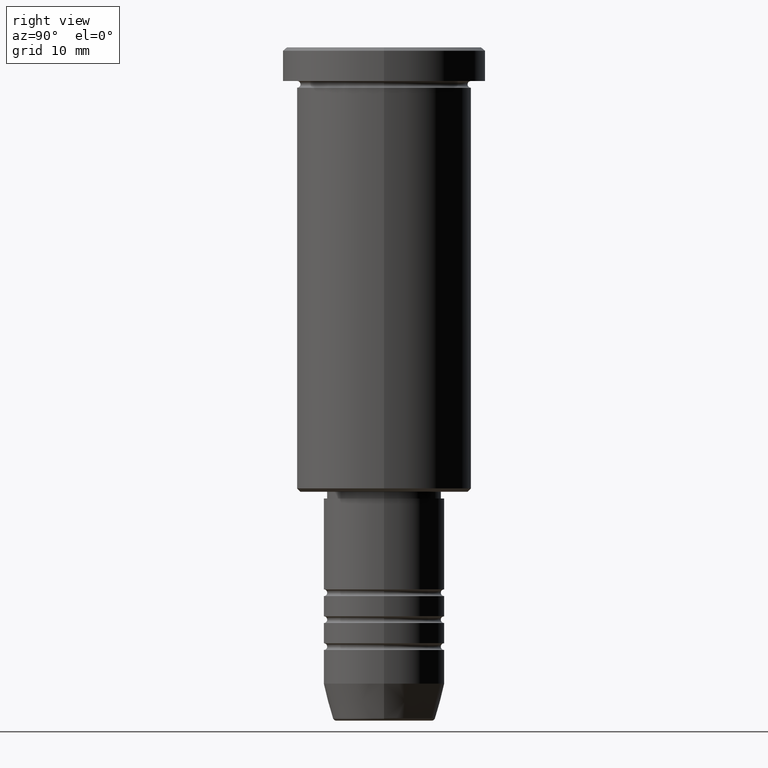
[diagram: clean part render]
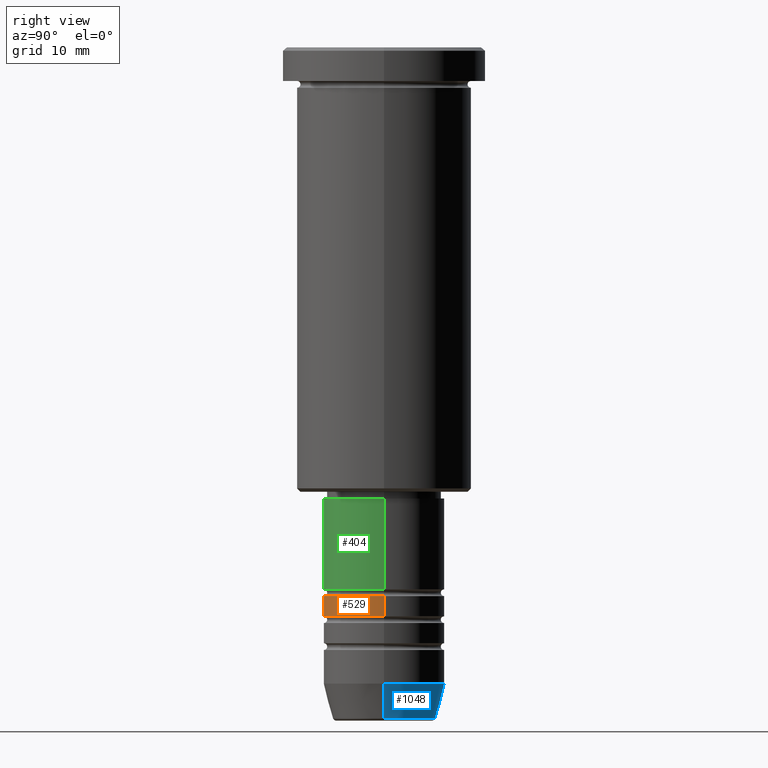
[diagram: same view with three faces highlighted in distinct colors, each labeled with its STEP entity id]
A machine part, right view with three faces highlighted in distinct colors.
Their STEP definitions:

[orange] entity #529 — the highlighted cylindrical surface (partial cylindrical patch) has radius 9 mm, axis along (-0, -0, 1).
#84 = DIRECTION ( 'NONE',  ( -0.000000000000000000, -0.000000000000000000, 1.000000000000000000 ) ) ;
#219 = LINE ( 'NONE', #389, #663 ) ;
#251 = CARTESIAN_POINT ( 'NONE',  ( 0.000000000000000000, 0.000000000000000000, -84.49999999999998579 ) ) ;
#277 = CIRCLE ( 'NONE', #316, 9.000000000000001776 ) ;
#316 = AXIS2_PLACEMENT_3D ( 'NONE', #251, #84, #719 ) ;
#347 = ORIENTED_EDGE ( 'NONE', *, *, #490, .T. ) ;
#389 = CARTESIAN_POINT ( 'NONE',  ( 9.000000000000001776, 0.000000000000000000, 0.000000000000000000 ) ) ;
#436 = EDGE_CURVE ( 'NONE', #1020, #1036, #714, .T. ) ;
#474 = CARTESIAN_POINT ( 'NONE',  ( 9.000000000000000000, 0.000000000000000000, -81.49999999999998579 ) ) ;
#490 = EDGE_CURVE ( 'NONE', #825, #723, #277, .T. ) ;
#518 = ORIENTED_EDGE ( 'NONE', *, *, #436, .F. ) ;
#519 = EDGE_CURVE ( 'NONE', #825, #1020, #608, .T. ) ;
#529 = ADVANCED_FACE ( 'NONE', ( #896 ), #540, .T. ) ;
#540 = CYLINDRICAL_SURFACE ( 'NONE', #931, 9.000000000000001776 ) ;
#556 = DIRECTION ( 'NONE',  ( -0.000000000000000000, -0.000000000000000000, 1.000000000000000000 ) ) ;
#560 = EDGE_LOOP ( 'NONE', ( #634, #347, #1178, #518 ) ) ;
#608 = LINE ( 'NONE', #1089, #788 ) ;
#634 = ORIENTED_EDGE ( 'NONE', *, *, #519, .F. ) ;
#659 = CARTESIAN_POINT ( 'NONE',  ( -9.000000000000001776, 1.102182119232617911E-15, -84.49999999999998579 ) ) ;
#663 = VECTOR ( 'NONE', #556, 1000.000000000000000 ) ;
#671 = DIRECTION ( 'NONE',  ( 1.000000000000000000, 0.000000000000000000, 0.000000000000000000 ) ) ;
#714 = CIRCLE ( 'NONE', #770, 9.000000000000000000 ) ;
#719 = DIRECTION ( 'NONE',  ( 1.000000000000000000, 0.000000000000000000, 0.000000000000000000 ) ) ;
#723 = VERTEX_POINT ( 'NONE', #748 ) ;
#725 = DIRECTION ( 'NONE',  ( -0.000000000000000000, -0.000000000000000000, 1.000000000000000000 ) ) ;
#748 = CARTESIAN_POINT ( 'NONE',  ( 9.000000000000001776, 0.000000000000000000, -84.49999999999998579 ) ) ;
#770 = AXIS2_PLACEMENT_3D ( 'NONE', #953, #856, #671 ) ;
#788 = VECTOR ( 'NONE', #1175, 1000.000000000000000 ) ;
#814 = CARTESIAN_POINT ( 'NONE',  ( 0.000000000000000000, 0.000000000000000000, 0.000000000000000000 ) ) ;
#825 = VERTEX_POINT ( 'NONE', #659 ) ;
#856 = DIRECTION ( 'NONE',  ( -0.000000000000000000, -0.000000000000000000, 1.000000000000000000 ) ) ;
#865 = EDGE_CURVE ( 'NONE', #723, #1036, #219, .T. ) ;
#896 = FACE_OUTER_BOUND ( 'NONE', #560, .T. ) ;
#907 = CARTESIAN_POINT ( 'NONE',  ( -9.000000000000000000, 1.102182119232617714E-15, -81.49999999999998579 ) ) ;
#931 = AXIS2_PLACEMENT_3D ( 'NONE', #814, #725, #1113 ) ;
#953 = CARTESIAN_POINT ( 'NONE',  ( 0.000000000000000000, 0.000000000000000000, -81.49999999999998579 ) ) ;
#1020 = VERTEX_POINT ( 'NONE', #907 ) ;
#1036 = VERTEX_POINT ( 'NONE', #474 ) ;
#1089 = CARTESIAN_POINT ( 'NONE',  ( -9.000000000000001776, 1.102182119232617911E-15, 0.000000000000000000 ) ) ;
#1113 = DIRECTION ( 'NONE',  ( 1.000000000000000000, 0.000000000000000000, 0.000000000000000000 ) ) ;
#1175 = DIRECTION ( 'NONE',  ( -0.000000000000000000, -0.000000000000000000, 1.000000000000000000 ) ) ;
#1178 = ORIENTED_EDGE ( 'NONE', *, *, #865, .T. ) ;

[blue] entity #1048 — the highlighted conical surface has half-angle 15 deg.
#6 = VECTOR ( 'NONE', #1088, 1000.000000000000000 ) ;
#49 = CARTESIAN_POINT ( 'NONE',  ( 9.000000000000001776, 0.000000000000000000, -94.50000000000000000 ) ) ;
#61 = DIRECTION ( 'NONE',  ( 1.000000000000000000, 0.000000000000000000, 0.000000000000000000 ) ) ;
#73 = CARTESIAN_POINT ( 'NONE',  ( 9.000000000000001776, 0.000000000000000000, -94.50000000000000000 ) ) ;
#95 = EDGE_LOOP ( 'NONE', ( #1133, #585, #482, #687 ) ) ;
#135 = CARTESIAN_POINT ( 'NONE',  ( 0.000000000000000000, 0.000000000000000000, -99.62940952255125637 ) ) ;
#208 = CARTESIAN_POINT ( 'NONE',  ( 0.000000000000000000, 0.000000000000000000, -94.50000000000000000 ) ) ;
#235 = CARTESIAN_POINT ( 'NONE',  ( 0.000000000000000000, 0.000000000000000000, -94.50000000000000000 ) ) ;
#304 = DIRECTION ( 'NONE',  ( 1.000000000000000000, 0.000000000000000000, 0.000000000000000000 ) ) ;
#325 = DIRECTION ( 'NONE',  ( -0.000000000000000000, -0.000000000000000000, 1.000000000000000000 ) ) ;
#371 = VERTEX_POINT ( 'NONE', #574 ) ;
#377 = EDGE_CURVE ( 'NONE', #920, #1090, #874, .T. ) ;
#380 = CARTESIAN_POINT ( 'NONE',  ( -9.000000000000001776, 1.102182119232617911E-15, -94.50000000000000000 ) ) ;
#391 = DIRECTION ( 'NONE',  ( -0.2588190451025214056, 3.169619151431772953E-17, 0.9659258262890680902 ) ) ;
#393 = EDGE_CURVE ( 'NONE', #1090, #762, #661, .T. ) ;
#472 = EDGE_CURVE ( 'NONE', #371, #762, #653, .T. ) ;
#482 = ORIENTED_EDGE ( 'NONE', *, *, #393, .F. ) ;
#525 = AXIS2_PLACEMENT_3D ( 'NONE', #208, #903, #304 ) ;
#538 = CARTESIAN_POINT ( 'NONE',  ( 7.625578860783879698, 0.000000000000000000, -99.62940952255125637 ) ) ;
#570 = DIRECTION ( 'NONE',  ( -0.000000000000000000, -0.000000000000000000, 1.000000000000000000 ) ) ;
#574 = CARTESIAN_POINT ( 'NONE',  ( -7.625578860783880586, 1.018023096791544096E-15, -99.62940952255125637 ) ) ;
#585 = ORIENTED_EDGE ( 'NONE', *, *, #472, .T. ) ;
#653 = LINE ( 'NONE', #380, #887 ) ;
#661 = CIRCLE ( 'NONE', #525, 9.000000000000001776 ) ;
#678 = AXIS2_PLACEMENT_3D ( 'NONE', #235, #325, #61 ) ;
#685 = EDGE_CURVE ( 'NONE', #920, #371, #737, .T. ) ;
#687 = ORIENTED_EDGE ( 'NONE', *, *, #377, .F. ) ;
#737 = CIRCLE ( 'NONE', #1124, 7.625578860783879698 ) ;
#762 = VERTEX_POINT ( 'NONE', #984 ) ;
#779 = DIRECTION ( 'NONE',  ( 1.000000000000000000, 0.000000000000000000, 0.000000000000000000 ) ) ;
#872 = CONICAL_SURFACE ( 'NONE', #678, 9.000000000000001776, 0.2617993877991501295 ) ;
#874 = LINE ( 'NONE', #73, #6 ) ;
#887 = VECTOR ( 'NONE', #391, 1000.000000000000000 ) ;
#903 = DIRECTION ( 'NONE',  ( -0.000000000000000000, -0.000000000000000000, 1.000000000000000000 ) ) ;
#920 = VERTEX_POINT ( 'NONE', #538 ) ;
#984 = CARTESIAN_POINT ( 'NONE',  ( -9.000000000000001776, 1.102182119232617911E-15, -94.50000000000000000 ) ) ;
#1048 = ADVANCED_FACE ( 'NONE', ( #1060 ), #872, .T. ) ;
#1060 = FACE_OUTER_BOUND ( 'NONE', #95, .T. ) ;
#1088 = DIRECTION ( 'NONE',  ( 0.2588190451025214056, 0.000000000000000000, 0.9659258262890680902 ) ) ;
#1090 = VERTEX_POINT ( 'NONE', #49 ) ;
#1124 = AXIS2_PLACEMENT_3D ( 'NONE', #135, #570, #779 ) ;
#1133 = ORIENTED_EDGE ( 'NONE', *, *, #685, .T. ) ;

[green] entity #404 — the highlighted cylindrical surface (partial cylindrical patch) has radius 9 mm, axis along (-0, -0, 1).
#67 = CARTESIAN_POINT ( 'NONE',  ( 0.000000000000000000, 0.000000000000000000, -67.00000000000000000 ) ) ;
#94 = CYLINDRICAL_SURFACE ( 'NONE', #849, 9.000000000000000000 ) ;
#108 = DIRECTION ( 'NONE',  ( -0.000000000000000000, -0.000000000000000000, 1.000000000000000000 ) ) ;
#125 = DIRECTION ( 'NONE',  ( -0.000000000000000000, -0.000000000000000000, 1.000000000000000000 ) ) ;
#130 = AXIS2_PLACEMENT_3D ( 'NONE', #266, #981, #441 ) ;
#170 = DIRECTION ( 'NONE',  ( -0.000000000000000000, -0.000000000000000000, 1.000000000000000000 ) ) ;
#212 = CIRCLE ( 'NONE', #1041, 8.999999999999998224 ) ;
#266 = CARTESIAN_POINT ( 'NONE',  ( 0.000000000000000000, 0.000000000000000000, -80.49999999999998579 ) ) ;
#270 = ORIENTED_EDGE ( 'NONE', *, *, #373, .F. ) ;
#318 = ORIENTED_EDGE ( 'NONE', *, *, #1179, .T. ) ;
#319 = VECTOR ( 'NONE', #664, 1000.000000000000000 ) ;
#342 = CARTESIAN_POINT ( 'NONE',  ( -8.999999999999998224, 1.102182119232617714E-15, -67.00000000000000000 ) ) ;
#344 = EDGE_LOOP ( 'NONE', ( #790, #1164, #318, #270 ) ) ;
#373 = EDGE_CURVE ( 'NONE', #701, #452, #212, .T. ) ;
#401 = LINE ( 'NONE', #1055, #319 ) ;
#404 = ADVANCED_FACE ( 'NONE', ( #1025 ), #94, .T. ) ;
#441 = DIRECTION ( 'NONE',  ( 1.000000000000000000, 0.000000000000000000, 0.000000000000000000 ) ) ;
#452 = VERTEX_POINT ( 'NONE', #941 ) ;
#515 = DIRECTION ( 'NONE',  ( 1.000000000000000000, 0.000000000000000000, 0.000000000000000000 ) ) ;
#547 = CARTESIAN_POINT ( 'NONE',  ( 0.000000000000000000, 0.000000000000000000, 0.000000000000000000 ) ) ;
#555 = EDGE_CURVE ( 'NONE', #1032, #701, #650, .T. ) ;
#583 = EDGE_CURVE ( 'NONE', #1032, #969, #1100, .T. ) ;
#619 = VECTOR ( 'NONE', #125, 1000.000000000000000 ) ;
#650 = LINE ( 'NONE', #1028, #619 ) ;
#664 = DIRECTION ( 'NONE',  ( -0.000000000000000000, -0.000000000000000000, 1.000000000000000000 ) ) ;
#701 = VERTEX_POINT ( 'NONE', #342 ) ;
#790 = ORIENTED_EDGE ( 'NONE', *, *, #555, .F. ) ;
#849 = AXIS2_PLACEMENT_3D ( 'NONE', #547, #108, #912 ) ;
#912 = DIRECTION ( 'NONE',  ( 1.000000000000000000, 0.000000000000000000, 0.000000000000000000 ) ) ;
#921 = CARTESIAN_POINT ( 'NONE',  ( -9.000000000000001776, 1.102182119232617911E-15, -80.49999999999998579 ) ) ;
#941 = CARTESIAN_POINT ( 'NONE',  ( 8.999999999999998224, 0.000000000000000000, -67.00000000000000000 ) ) ;
#969 = VERTEX_POINT ( 'NONE', #1001 ) ;
#981 = DIRECTION ( 'NONE',  ( -0.000000000000000000, -0.000000000000000000, 1.000000000000000000 ) ) ;
#1001 = CARTESIAN_POINT ( 'NONE',  ( 9.000000000000001776, 0.000000000000000000, -80.49999999999998579 ) ) ;
#1025 = FACE_OUTER_BOUND ( 'NONE', #344, .T. ) ;
#1028 = CARTESIAN_POINT ( 'NONE',  ( -9.000000000000000000, 1.102182119232617714E-15, 0.000000000000000000 ) ) ;
#1032 = VERTEX_POINT ( 'NONE', #921 ) ;
#1041 = AXIS2_PLACEMENT_3D ( 'NONE', #67, #170, #515 ) ;
#1055 = CARTESIAN_POINT ( 'NONE',  ( 9.000000000000000000, 0.000000000000000000, 0.000000000000000000 ) ) ;
#1100 = CIRCLE ( 'NONE', #130, 9.000000000000001776 ) ;
#1164 = ORIENTED_EDGE ( 'NONE', *, *, #583, .T. ) ;
#1179 = EDGE_CURVE ( 'NONE', #969, #452, #401, .T. ) ;